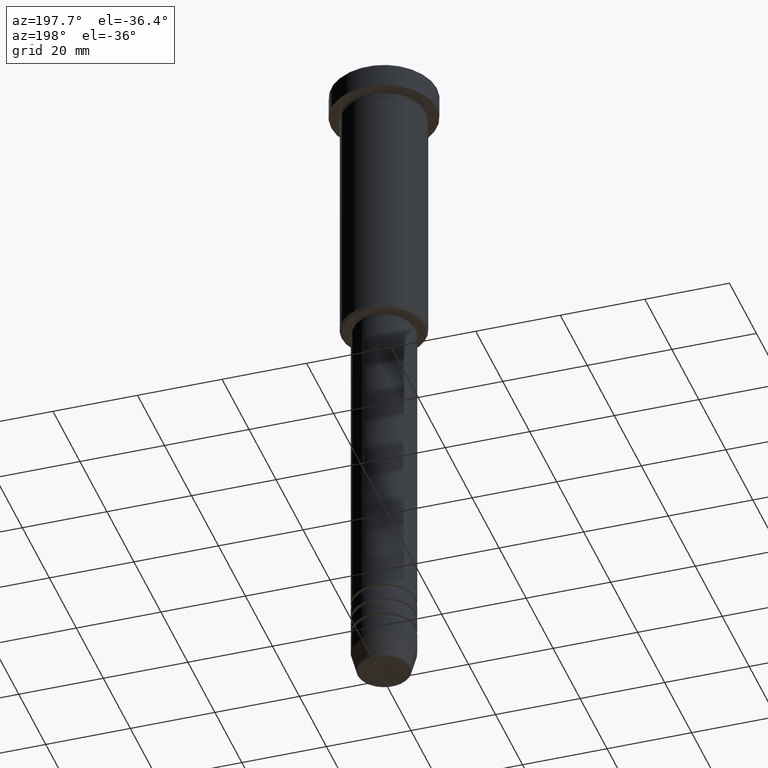
[diagram: clean part render]
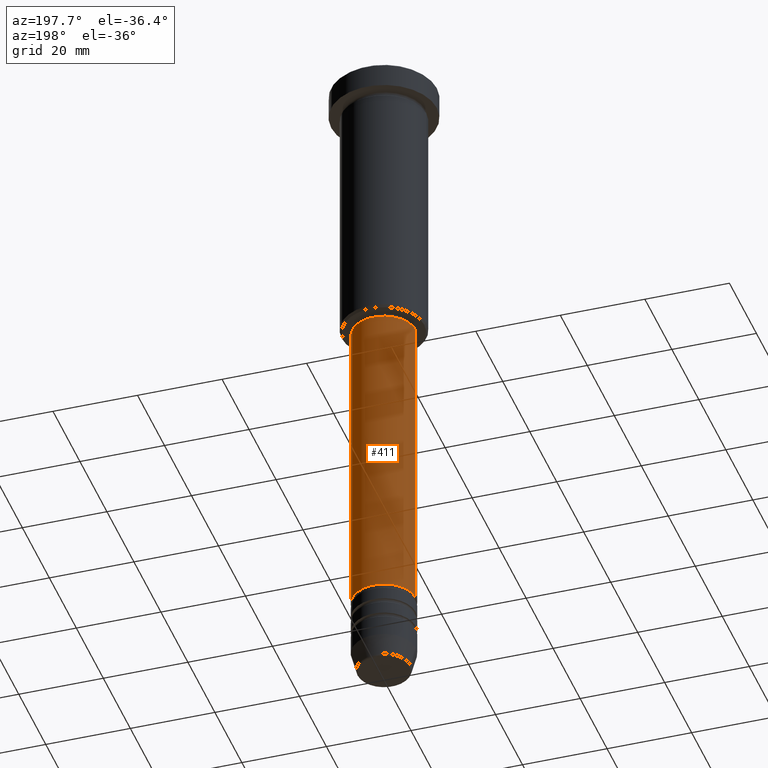
[diagram: same view with one face highlighted and labeled with its STEP entity id]
A machine part, auxiliary view. The second image highlights one B-rep face of the part: STEP entity #411.
In plain terms, the highlighted cylindrical surface (edge-blend (fillet) strip) has radius 7.5 mm, axis along (-0, -0, 1).
Its self-contained STEP definition (entity closure, byte-faithful):
#72 = LINE ( 'NONE', #353, #795 ) ;
#74 = DIRECTION ( 'NONE',  ( -0.000000000000000000, -0.000000000000000000, 1.000000000000000000 ) ) ;
#91 = ORIENTED_EDGE ( 'NONE', *, *, #665, .F. ) ;
#116 = VERTEX_POINT ( 'NONE', #447 ) ;
#132 = VERTEX_POINT ( 'NONE', #650 ) ;
#143 = LINE ( 'NONE', #325, #1096 ) ;
#175 = CIRCLE ( 'NONE', #1094, 7.500000000000000888 ) ;
#200 = ORIENTED_EDGE ( 'NONE', *, *, #956, .T. ) ;
#203 = DIRECTION ( 'NONE',  ( 1.000000000000000000, 0.000000000000000000, 0.000000000000000000 ) ) ;
#210 = VERTEX_POINT ( 'NONE', #815 ) ;
#232 = CARTESIAN_POINT ( 'NONE',  ( 0.000000000000000000, 0.000000000000000000, -141.9999999999999147 ) ) ;
#258 = DIRECTION ( 'NONE',  ( 1.000000000000000000, 0.000000000000000000, 0.000000000000000000 ) ) ;
#264 = FACE_OUTER_BOUND ( 'NONE', #270, .T. ) ;
#268 = EDGE_CURVE ( 'NONE', #978, #116, #175, .T. ) ;
#270 = EDGE_LOOP ( 'NONE', ( #646, #200, #91, #345 ) ) ;
#325 = CARTESIAN_POINT ( 'NONE',  ( 7.500000000000000000, 0.000000000000000000, 0.000000000000000000 ) ) ;
#330 = CYLINDRICAL_SURFACE ( 'NONE', #340, 7.500000000000000000 ) ;
#340 = AXIS2_PLACEMENT_3D ( 'NONE', #598, #74, #258 ) ;
#345 = ORIENTED_EDGE ( 'NONE', *, *, #818, .F. ) ;
#353 = CARTESIAN_POINT ( 'NONE',  ( -7.500000000000000000, 9.184850993605147944E-16, 0.000000000000000000 ) ) ;
#368 = CARTESIAN_POINT ( 'NONE',  ( 0.000000000000000000, 0.000000000000000000, -67.00000000000002842 ) ) ;
#384 = DIRECTION ( 'NONE',  ( -0.000000000000000000, -0.000000000000000000, 1.000000000000000000 ) ) ;
#411 = ADVANCED_FACE ( 'NONE', ( #264 ), #330, .T. ) ;
#447 = CARTESIAN_POINT ( 'NONE',  ( -7.500000000000001776, 9.184850993605149917E-16, -141.9999999999999147 ) ) ;
#457 = DIRECTION ( 'NONE',  ( 1.000000000000000000, 0.000000000000000000, 0.000000000000000000 ) ) ;
#476 = DIRECTION ( 'NONE',  ( -0.000000000000000000, -0.000000000000000000, 1.000000000000000000 ) ) ;
#598 = CARTESIAN_POINT ( 'NONE',  ( 0.000000000000000000, 0.000000000000000000, 0.000000000000000000 ) ) ;
#646 = ORIENTED_EDGE ( 'NONE', *, *, #268, .T. ) ;
#650 = CARTESIAN_POINT ( 'NONE',  ( 7.500000000000000000, 0.000000000000000000, -67.00000000000002842 ) ) ;
#665 = EDGE_CURVE ( 'NONE', #132, #210, #756, .T. ) ;
#756 = CIRCLE ( 'NONE', #874, 7.500000000000000000 ) ;
#785 = CARTESIAN_POINT ( 'NONE',  ( 7.500000000000000888, 0.000000000000000000, -141.9999999999999147 ) ) ;
#795 = VECTOR ( 'NONE', #1069, 1000.000000000000000 ) ;
#815 = CARTESIAN_POINT ( 'NONE',  ( -7.500000000000000000, 9.184850993605147944E-16, -67.00000000000002842 ) ) ;
#818 = EDGE_CURVE ( 'NONE', #978, #132, #143, .T. ) ;
#874 = AXIS2_PLACEMENT_3D ( 'NONE', #368, #476, #457 ) ;
#940 = DIRECTION ( 'NONE',  ( -0.000000000000000000, -0.000000000000000000, 1.000000000000000000 ) ) ;
#956 = EDGE_CURVE ( 'NONE', #116, #210, #72, .T. ) ;
#978 = VERTEX_POINT ( 'NONE', #785 ) ;
#1069 = DIRECTION ( 'NONE',  ( -0.000000000000000000, -0.000000000000000000, 1.000000000000000000 ) ) ;
#1094 = AXIS2_PLACEMENT_3D ( 'NONE', #232, #384, #203 ) ;
#1096 = VECTOR ( 'NONE', #940, 1000.000000000000000 ) ;